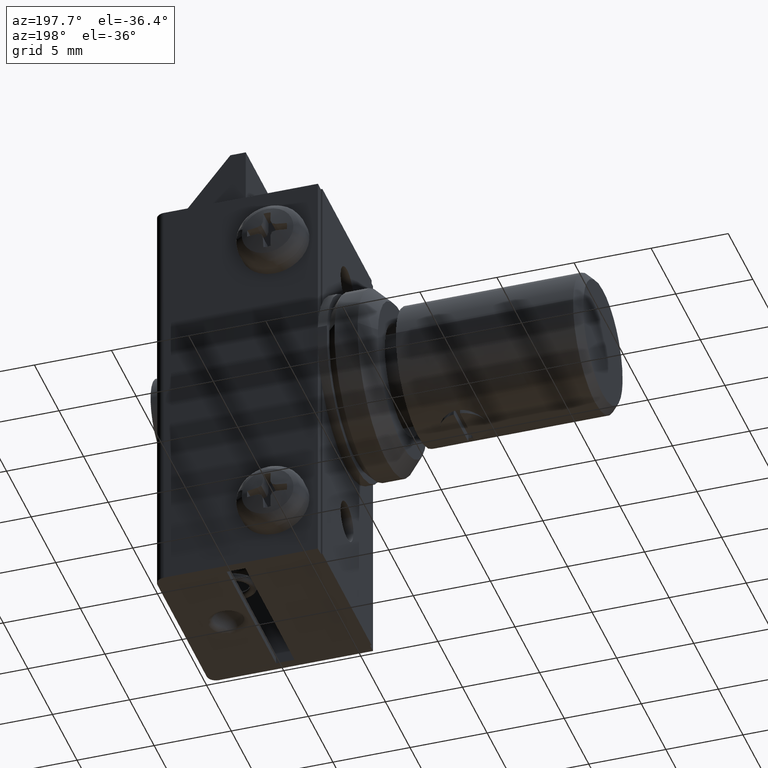
[diagram: clean part render]
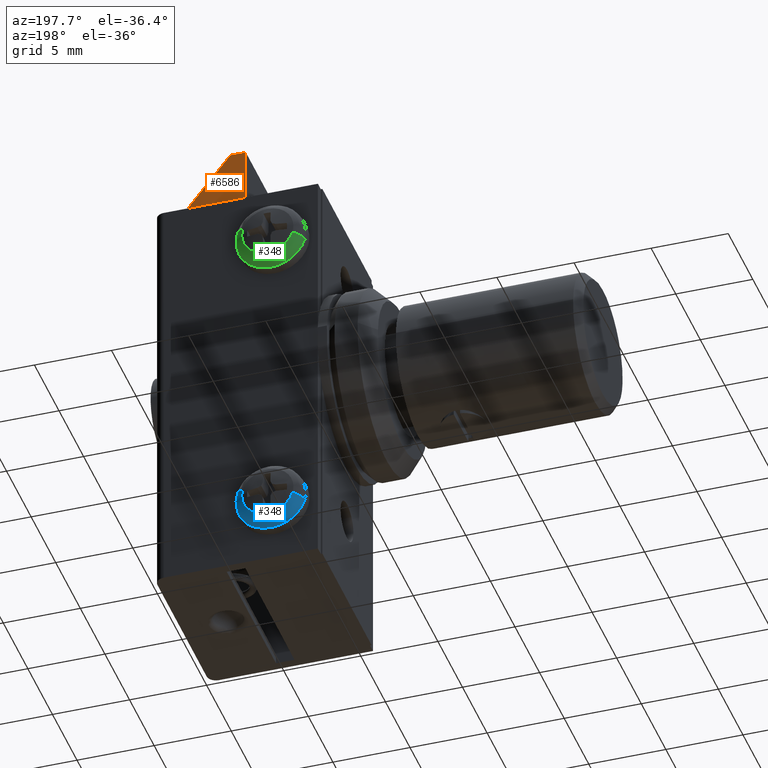
[diagram: same view with three faces highlighted in distinct colors, each labeled with its STEP entity id]
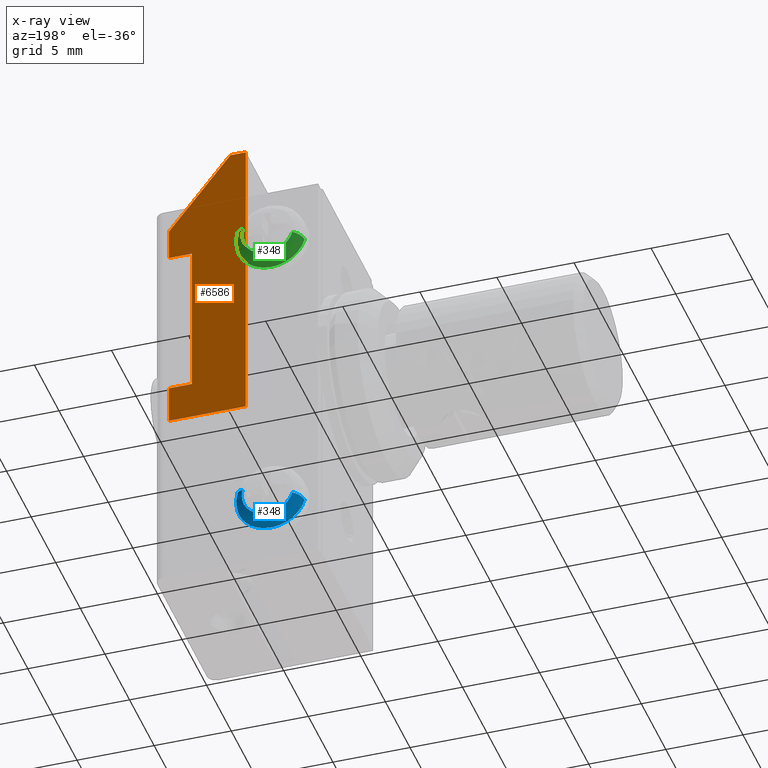
[diagram: x-ray of the same camera — body ghosted, the three highlighted faces saturated]
A machine part, auxiliary view with three faces highlighted in distinct colors.
The next image is the same camera in x-ray (body ghosted, the three faces saturated) — at least one of them is partly hidden behind the body in this view.
Their STEP definitions:

[orange] entity #6586 — the highlighted face is a freeform B-spline surface patch.
#6188=CARTESIAN_POINT('',(-0.500000000000000,4.900000000000000,15.0));
#6189=VERTEX_POINT('',#6188);
#6195=CARTESIAN_POINT('',(-2.0,4.900000000000000,15.0));
#6196=VERTEX_POINT('',#6195);
#6197=CARTESIAN_POINT('',(-0.500000000000000,4.900000000000000,15.0));
#6198=CARTESIAN_POINT('',(-2.0,4.900000000000000,15.0));
#6199=QUASI_UNIFORM_CURVE('',1,(#6197,#6198),.UNSPECIFIED.,.F.,.U.);
#6200=EDGE_CURVE('',#6189,#6196,#6199,.T.);
#6244=CARTESIAN_POINT('',(-2.0,4.900000000000000,25.0));
#6245=VERTEX_POINT('',#6244);
#6246=CARTESIAN_POINT('',(-2.0,4.900000000000000,25.0));
#6247=CARTESIAN_POINT('',(-2.0,4.900000000000000,15.0));
#6248=QUASI_UNIFORM_CURVE('',1,(#6246,#6247),.UNSPECIFIED.,.F.,.U.);
#6249=EDGE_CURVE('',#6245,#6196,#6248,.T.);
#6336=CARTESIAN_POINT('',(-0.500000000000000,4.900000000000000,25.0));
#6337=VERTEX_POINT('',#6336);
#6338=CARTESIAN_POINT('',(-0.500000000000000,4.900000000000000,25.0));
#6339=CARTESIAN_POINT('',(-2.0,4.900000000000000,25.0));
#6340=QUASI_UNIFORM_CURVE('',1,(#6338,#6339),.UNSPECIFIED.,.F.,.U.);
#6341=EDGE_CURVE('',#6337,#6245,#6340,.T.);
#6391=CARTESIAN_POINT('',(-0.500000000000000,4.900000000000000,27.000005312417699));
#6392=VERTEX_POINT('',#6391);
#6398=CARTESIAN_POINT('',(-4.500012000048830,4.900000000000000,32.0));
#6399=VERTEX_POINT('',#6398);
#6400=CARTESIAN_POINT('',(-4.500012000048830,4.900000000000000,32.0));
#6401=CARTESIAN_POINT('',(-0.500000000000000,4.900000000000000,27.000005312417699));
#6402=QUASI_UNIFORM_CURVE('',1,(#6400,#6401),.UNSPECIFIED.,.F.,.U.);
#6403=EDGE_CURVE('',#6399,#6392,#6402,.T.);
#6426=CARTESIAN_POINT('',(-5.500000000000000,4.900000000000000,32.0));
#6427=VERTEX_POINT('',#6426);
#6428=CARTESIAN_POINT('',(-5.500000000000000,4.900000000000000,32.0));
#6429=CARTESIAN_POINT('',(-4.500012000048830,4.900000000000000,32.0));
#6430=QUASI_UNIFORM_CURVE('',1,(#6428,#6429),.UNSPECIFIED.,.F.,.U.);
#6431=EDGE_CURVE('',#6427,#6399,#6430,.T.);
#6455=CARTESIAN_POINT('',(-5.500000000000000,4.900000000000000,12.500000000000000));
#6456=VERTEX_POINT('',#6455);
#6462=CARTESIAN_POINT('',(-0.500000000000000,4.900000000000000,12.500000000000000));
#6463=VERTEX_POINT('',#6462);
#6464=CARTESIAN_POINT('',(-0.500000000000000,4.900000000000000,12.500000000000000));
#6465=CARTESIAN_POINT('',(-5.500000000000000,4.900000000000000,12.500000000000000));
#6466=QUASI_UNIFORM_CURVE('',1,(#6464,#6465),.UNSPECIFIED.,.F.,.U.);
#6467=EDGE_CURVE('',#6463,#6456,#6466,.T.);
#6494=CARTESIAN_POINT('',(-0.500000000000000,4.900000000000000,27.000005312417699));
#6495=CARTESIAN_POINT('',(-0.500000000000000,4.900000000000000,25.0));
#6496=QUASI_UNIFORM_CURVE('',1,(#6494,#6495),.UNSPECIFIED.,.F.,.U.);
#6497=EDGE_CURVE('',#6392,#6337,#6496,.T.);
#6514=CARTESIAN_POINT('',(-5.500000000000000,4.900000000000000,12.500000000000000));
#6515=CARTESIAN_POINT('',(-5.500000000000000,4.900000000000000,32.0));
#6516=QUASI_UNIFORM_CURVE('',1,(#6514,#6515),.UNSPECIFIED.,.F.,.U.);
#6517=EDGE_CURVE('',#6456,#6427,#6516,.T.);
#6566=CARTESIAN_POINT('',(-5.749749990309030,4.900000000000000,32.974024962205220));
#6567=CARTESIAN_POINT('',(-0.250249875580520,4.900000000000000,32.974024962205220));
#6568=CARTESIAN_POINT('',(-5.749749990309030,4.900000000000000,11.525974514764030));
#6569=CARTESIAN_POINT('',(-0.250249875580520,4.900000000000000,11.525974514764030));
#6570=B_SPLINE_SURFACE_WITH_KNOTS('',1,1,((#6566,#6568),(#6567,#6569)),.UNSPECIFIED.,.F.,.F.,.U.,(2,2),(2,2),(0.0,5.499500114728510),(0.0,21.448050447441190),.UNSPECIFIED.);
#6571=ORIENTED_EDGE('',*,*,#6249,.T.);
#6572=ORIENTED_EDGE('',*,*,#6200,.F.);
#6573=CARTESIAN_POINT('',(-0.500000000000000,4.900000000000000,15.0));
#6574=CARTESIAN_POINT('',(-0.500000000000000,4.900000000000000,12.500000000000000));
#6575=QUASI_UNIFORM_CURVE('',1,(#6573,#6574),.UNSPECIFIED.,.F.,.U.);
#6576=EDGE_CURVE('',#6189,#6463,#6575,.T.);
#6577=ORIENTED_EDGE('',*,*,#6576,.T.);
#6578=ORIENTED_EDGE('',*,*,#6467,.T.);
#6579=ORIENTED_EDGE('',*,*,#6517,.T.);
#6580=ORIENTED_EDGE('',*,*,#6431,.T.);
#6581=ORIENTED_EDGE('',*,*,#6403,.T.);
#6582=ORIENTED_EDGE('',*,*,#6497,.T.);
#6583=ORIENTED_EDGE('',*,*,#6341,.T.);
#6584=EDGE_LOOP('',(#6571,#6572,#6577,#6578,#6579,#6580,#6581,#6582,#6583));
#6585=FACE_OUTER_BOUND('',#6584,.T.);
#6586=ADVANCED_FACE('',(#6585),#6570,.T.);

[blue] entity #348 — the highlighted face is a freeform B-spline surface patch.
#66=CARTESIAN_POINT('',(-6.240695038950468,-6.293762958131910,25.622066106918041));
#67=VERTEX_POINT('',#66);
#68=CARTESIAN_POINT('',(-5.635427625020865,-6.293762958249960,23.385858963917901));
#69=VERTEX_POINT('',#68);
#70=CARTESIAN_POINT('',(-6.240695038950468,-6.293762958131910,25.622066106918044));
#71=CARTESIAN_POINT('',(-5.549989999999760,-6.293762958112199,24.958090494951374));
#72=CARTESIAN_POINT('',(-5.549989999999760,-6.293762958112200,24.0));
#73=CARTESIAN_POINT('',(-5.549989999999760,-6.293762958112200,23.686986557324435));
#74=CARTESIAN_POINT('',(-5.635427625020865,-6.293762958249962,23.385858963917901));
#82=(BOUNDED_CURVE()B_SPLINE_CURVE(2,(#70,#71,#72,#73,#74),.UNSPECIFIED.,.F.,.U.)B_SPLINE_CURVE_WITH_KNOTS((3,2,3),(0.122022968753312,0.250000000000000,0.296505535788620),.UNSPECIFIED.)CURVE()GEOMETRIC_REPRESENTATION_ITEM()RATIONAL_B_SPLINE_CURVE((0.853636457125645,0.850065581535871,1.0,0.945515375720908,0.911301444596542))REPRESENTATION_ITEM(''));
#83=EDGE_CURVE('',#67,#69,#82,.T.);
#180=CARTESIAN_POINT('',(-7.799986999999869,-6.293762958112200,26.249997000000111));
#181=VERTEX_POINT('',#180);
#182=CARTESIAN_POINT('',(-7.799986999999869,-6.293762958112200,26.249997000000111));
#183=CARTESIAN_POINT('',(-6.893906425447376,-6.293762958112199,26.249997000000107));
#184=CARTESIAN_POINT('',(-6.240695038950468,-6.293762958131910,25.622066106918041));
#192=(BOUNDED_CURVE()B_SPLINE_CURVE(2,(#182,#183,#184),.UNSPECIFIED.,.F.,.U.)B_SPLINE_CURVE_WITH_KNOTS((3,3),(0.0,0.122022968753312),.UNSPECIFIED.)CURVE()GEOMETRIC_REPRESENTATION_ITEM()RATIONAL_B_SPLINE_CURVE((1.0,0.857041199650677,0.853636457125645))REPRESENTATION_ITEM(''));
#193=EDGE_CURVE('',#181,#67,#192,.T.);
#227=CARTESIAN_POINT('',(-9.964546374978873,-6.293762958249962,24.614141036082099));
#228=VERTEX_POINT('',#227);
#244=CARTESIAN_POINT('',(-9.964546374978873,-6.293762958249963,24.614141036082106));
#245=CARTESIAN_POINT('',(-9.500412062833400,-6.293762958112200,26.249997000000125));
#246=CARTESIAN_POINT('',(-7.799986999999869,-6.293762958112200,26.249997000000111));
#254=(BOUNDED_CURVE()B_SPLINE_CURVE(2,(#244,#245,#246),.UNSPECIFIED.,.F.,.U.)B_SPLINE_CURVE_WITH_KNOTS((3,3),(0.796505535788620,1.0),.UNSPECIFIED.)CURVE()GEOMETRIC_REPRESENTATION_ITEM()RATIONAL_B_SPLINE_CURVE((0.911301444596542,0.761591405465640,1.0))REPRESENTATION_ITEM(''));
#255=EDGE_CURVE('',#228,#181,#254,.T.);
#260=CARTESIAN_POINT('',(-9.365344813345688,-7.073903272484829,24.444132177846274));
#261=CARTESIAN_POINT('',(-8.921212635499414,-7.073903272484830,26.009489991192098));
#262=CARTESIAN_POINT('',(-7.355854822153595,-7.073903272484829,25.565357813345816));
#263=CARTESIAN_POINT('',(-5.790497008807777,-7.073903272484830,25.121225635499552));
#264=CARTESIAN_POINT('',(-6.234629186654049,-7.073903272484829,23.555867822153726));
#265=CARTESIAN_POINT('',(-10.001969907433411,-6.923638231132469,24.624759052480403));
#266=CARTESIAN_POINT('',(-9.377210854953006,-6.923638231132468,26.826741959913946));
#267=CARTESIAN_POINT('',(-7.175227947519468,-6.923638231132469,26.201982907433543));
#268=CARTESIAN_POINT('',(-4.973245040085927,-6.923638231132468,25.577223854953132));
#269=CARTESIAN_POINT('',(-5.598004092566331,-6.923638231132469,23.375240947519600));
#270=CARTESIAN_POINT('',(-9.963187098925156,-6.246237335243344,24.613755374561595));
#271=CARTESIAN_POINT('',(-9.349431724363575,-6.246237335243342,26.776955473486872));
#272=CARTESIAN_POINT('',(-7.186231625438289,-6.246237335243344,26.163200098925284));
#273=CARTESIAN_POINT('',(-5.023031526513002,-6.246237335243342,25.549444724363696));
#274=CARTESIAN_POINT('',(-5.636786901074585,-6.246237335243344,23.386244625438430));
#282=(BOUNDED_SURFACE()B_SPLINE_SURFACE(2,2,((#260,#265,#270),(#261,#266,#271),(#262,#267,#272),(#263,#268,#273),(#264,#269,#274)),.UNSPECIFIED.,.F.,.F.,.U.)B_SPLINE_SURFACE_WITH_KNOTS((3,2,3),(3,3),(0.0,3.725576074644100,7.451152149288200),(0.0,1.174398845798601),.UNSPECIFIED.)GEOMETRIC_REPRESENTATION_ITEM()RATIONAL_B_SPLINE_SURFACE(((0.917543070438592,0.698907896045894,0.915424195228748),(0.648800927137854,0.494202512718874,0.647302656108486),(0.917543070438592,0.698907896045894,0.915424195228748),(0.648800927137854,0.494202512718874,0.647302656108486),(0.917543070438592,0.698907896045894,0.915424195228748)))REPRESENTATION_ITEM('')SURFACE());
#283=CARTESIAN_POINT('',(-9.409532855611982,-7.062032371019841,24.456669459876309));
#284=VERTEX_POINT('',#283);
#285=CARTESIAN_POINT('',(-7.799986999999869,-7.062033736562820,25.673076858853719));
#286=VERTEX_POINT('',#285);
#287=CARTESIAN_POINT('',(-9.409532855611982,-7.062032371019841,24.456669459876309));
#288=CARTESIAN_POINT('',(-9.064407083830481,-7.062033053791332,25.673076805068089));
#289=CARTESIAN_POINT('',(-7.799986999999869,-7.062033736562820,25.673076858853719));
#297=(BOUNDED_CURVE()B_SPLINE_CURVE(2,(#287,#288,#289),.UNSPECIFIED.,.F.,.U.)B_SPLINE_CURVE_WITH_KNOTS((3,3),(0.796505535840531,1.0),.UNSPECIFIED.)CURVE()GEOMETRIC_REPRESENTATION_ITEM()RATIONAL_B_SPLINE_CURVE((0.911301444520160,0.761591405526458,1.0))REPRESENTATION_ITEM(''));
#298=EDGE_CURVE('',#284,#286,#297,.T.);
#299=ORIENTED_EDGE('',*,*,#298,.T.);
#300=CARTESIAN_POINT('',(-6.190441144387757,-7.062032371019841,23.543330540123691));
#301=VERTEX_POINT('',#300);
#302=CARTESIAN_POINT('',(-7.799986999999869,-7.062033736562820,25.673076858853719));
#303=CARTESIAN_POINT('',(-6.126910284412166,-7.062033220561354,25.673076899501964));
#304=CARTESIAN_POINT('',(-6.126910473981291,-7.062032537789865,24.000000094433869));
#305=CARTESIAN_POINT('',(-6.126910500353630,-7.062032442804558,23.767246214658382));
#306=CARTESIAN_POINT('',(-6.190441144387758,-7.062032371019841,23.543330540123694));
#314=(BOUNDED_CURVE()B_SPLINE_CURVE(2,(#302,#303,#304,#305,#306),.UNSPECIFIED.,.F.,.U.)B_SPLINE_CURVE_WITH_KNOTS((3,2,3),(0.0,0.250000000000000,0.296505535840531),.UNSPECIFIED.)CURVE()GEOMETRIC_REPRESENTATION_ITEM()RATIONAL_B_SPLINE_CURVE((1.0,0.707106781186547,1.0,0.945515375660090,0.911301444520160))REPRESENTATION_ITEM(''));
#315=EDGE_CURVE('',#286,#301,#314,.T.);
#316=ORIENTED_EDGE('',*,*,#315,.T.);
#317=CARTESIAN_POINT('',(-6.190441144387757,-7.062032371019841,23.543330540123691));
#318=CARTESIAN_POINT('',(-5.635427404398696,-6.894513335637758,23.385858901035235));
#319=CARTESIAN_POINT('',(-5.635427625020865,-6.293762958249960,23.385858963917901));
#327=(BOUNDED_CURVE()B_SPLINE_CURVE(2,(#317,#318,#319),.UNSPECIFIED.,.F.,.U.)B_SPLINE_CURVE_WITH_KNOTS((3,3),(-1.687478475823507,-0.319845355429088),.UNSPECIFIED.)CURVE()GEOMETRIC_REPRESENTATION_ITEM()RATIONAL_B_SPLINE_CURVE((0.898582511700671,0.717772118742888,0.896656306221798))REPRESENTATION_ITEM(''));
#328=EDGE_CURVE('',#301,#69,#327,.T.);
#329=ORIENTED_EDGE('',*,*,#328,.T.);
#330=ORIENTED_EDGE('',*,*,#83,.F.);
#331=ORIENTED_EDGE('',*,*,#193,.F.);
#332=ORIENTED_EDGE('',*,*,#255,.F.);
#333=CARTESIAN_POINT('',(-9.409532855611982,-7.062032371019841,24.456669459876302));
#334=CARTESIAN_POINT('',(-9.964546595601043,-6.894513335637758,24.614141098964765));
#335=CARTESIAN_POINT('',(-9.964546374978873,-6.293762958249962,24.614141036082106));
#343=(BOUNDED_CURVE()B_SPLINE_CURVE(2,(#333,#334,#335),.UNSPECIFIED.,.F.,.U.)B_SPLINE_CURVE_WITH_KNOTS((3,3),(-1.687478475823508,-0.319845355429089),.UNSPECIFIED.)CURVE()GEOMETRIC_REPRESENTATION_ITEM()RATIONAL_B_SPLINE_CURVE((0.898582511700671,0.717772118742888,0.896656306221798))REPRESENTATION_ITEM(''));
#344=EDGE_CURVE('',#284,#228,#343,.T.);
#345=ORIENTED_EDGE('',*,*,#344,.F.);
#346=EDGE_LOOP('',(#299,#316,#329,#330,#331,#332,#345));
#347=FACE_OUTER_BOUND('',#346,.T.);
#348=ADVANCED_FACE('',(#347),#282,.T.);

[green] entity #348 — the highlighted face is a freeform B-spline surface patch.
#66=CARTESIAN_POINT('',(-6.240695038950468,-6.293762958131910,25.622066106918041));
#67=VERTEX_POINT('',#66);
#68=CARTESIAN_POINT('',(-5.635427625020865,-6.293762958249960,23.385858963917901));
#69=VERTEX_POINT('',#68);
#70=CARTESIAN_POINT('',(-6.240695038950468,-6.293762958131910,25.622066106918044));
#71=CARTESIAN_POINT('',(-5.549989999999760,-6.293762958112199,24.958090494951374));
#72=CARTESIAN_POINT('',(-5.549989999999760,-6.293762958112200,24.0));
#73=CARTESIAN_POINT('',(-5.549989999999760,-6.293762958112200,23.686986557324435));
#74=CARTESIAN_POINT('',(-5.635427625020865,-6.293762958249962,23.385858963917901));
#82=(BOUNDED_CURVE()B_SPLINE_CURVE(2,(#70,#71,#72,#73,#74),.UNSPECIFIED.,.F.,.U.)B_SPLINE_CURVE_WITH_KNOTS((3,2,3),(0.122022968753312,0.250000000000000,0.296505535788620),.UNSPECIFIED.)CURVE()GEOMETRIC_REPRESENTATION_ITEM()RATIONAL_B_SPLINE_CURVE((0.853636457125645,0.850065581535871,1.0,0.945515375720908,0.911301444596542))REPRESENTATION_ITEM(''));
#83=EDGE_CURVE('',#67,#69,#82,.T.);
#180=CARTESIAN_POINT('',(-7.799986999999869,-6.293762958112200,26.249997000000111));
#181=VERTEX_POINT('',#180);
#182=CARTESIAN_POINT('',(-7.799986999999869,-6.293762958112200,26.249997000000111));
#183=CARTESIAN_POINT('',(-6.893906425447376,-6.293762958112199,26.249997000000107));
#184=CARTESIAN_POINT('',(-6.240695038950468,-6.293762958131910,25.622066106918041));
#192=(BOUNDED_CURVE()B_SPLINE_CURVE(2,(#182,#183,#184),.UNSPECIFIED.,.F.,.U.)B_SPLINE_CURVE_WITH_KNOTS((3,3),(0.0,0.122022968753312),.UNSPECIFIED.)CURVE()GEOMETRIC_REPRESENTATION_ITEM()RATIONAL_B_SPLINE_CURVE((1.0,0.857041199650677,0.853636457125645))REPRESENTATION_ITEM(''));
#193=EDGE_CURVE('',#181,#67,#192,.T.);
#227=CARTESIAN_POINT('',(-9.964546374978873,-6.293762958249962,24.614141036082099));
#228=VERTEX_POINT('',#227);
#244=CARTESIAN_POINT('',(-9.964546374978873,-6.293762958249963,24.614141036082106));
#245=CARTESIAN_POINT('',(-9.500412062833400,-6.293762958112200,26.249997000000125));
#246=CARTESIAN_POINT('',(-7.799986999999869,-6.293762958112200,26.249997000000111));
#254=(BOUNDED_CURVE()B_SPLINE_CURVE(2,(#244,#245,#246),.UNSPECIFIED.,.F.,.U.)B_SPLINE_CURVE_WITH_KNOTS((3,3),(0.796505535788620,1.0),.UNSPECIFIED.)CURVE()GEOMETRIC_REPRESENTATION_ITEM()RATIONAL_B_SPLINE_CURVE((0.911301444596542,0.761591405465640,1.0))REPRESENTATION_ITEM(''));
#255=EDGE_CURVE('',#228,#181,#254,.T.);
#260=CARTESIAN_POINT('',(-9.365344813345688,-7.073903272484829,24.444132177846274));
#261=CARTESIAN_POINT('',(-8.921212635499414,-7.073903272484830,26.009489991192098));
#262=CARTESIAN_POINT('',(-7.355854822153595,-7.073903272484829,25.565357813345816));
#263=CARTESIAN_POINT('',(-5.790497008807777,-7.073903272484830,25.121225635499552));
#264=CARTESIAN_POINT('',(-6.234629186654049,-7.073903272484829,23.555867822153726));
#265=CARTESIAN_POINT('',(-10.001969907433411,-6.923638231132469,24.624759052480403));
#266=CARTESIAN_POINT('',(-9.377210854953006,-6.923638231132468,26.826741959913946));
#267=CARTESIAN_POINT('',(-7.175227947519468,-6.923638231132469,26.201982907433543));
#268=CARTESIAN_POINT('',(-4.973245040085927,-6.923638231132468,25.577223854953132));
#269=CARTESIAN_POINT('',(-5.598004092566331,-6.923638231132469,23.375240947519600));
#270=CARTESIAN_POINT('',(-9.963187098925156,-6.246237335243344,24.613755374561595));
#271=CARTESIAN_POINT('',(-9.349431724363575,-6.246237335243342,26.776955473486872));
#272=CARTESIAN_POINT('',(-7.186231625438289,-6.246237335243344,26.163200098925284));
#273=CARTESIAN_POINT('',(-5.023031526513002,-6.246237335243342,25.549444724363696));
#274=CARTESIAN_POINT('',(-5.636786901074585,-6.246237335243344,23.386244625438430));
#282=(BOUNDED_SURFACE()B_SPLINE_SURFACE(2,2,((#260,#265,#270),(#261,#266,#271),(#262,#267,#272),(#263,#268,#273),(#264,#269,#274)),.UNSPECIFIED.,.F.,.F.,.U.)B_SPLINE_SURFACE_WITH_KNOTS((3,2,3),(3,3),(0.0,3.725576074644100,7.451152149288200),(0.0,1.174398845798601),.UNSPECIFIED.)GEOMETRIC_REPRESENTATION_ITEM()RATIONAL_B_SPLINE_SURFACE(((0.917543070438592,0.698907896045894,0.915424195228748),(0.648800927137854,0.494202512718874,0.647302656108486),(0.917543070438592,0.698907896045894,0.915424195228748),(0.648800927137854,0.494202512718874,0.647302656108486),(0.917543070438592,0.698907896045894,0.915424195228748)))REPRESENTATION_ITEM('')SURFACE());
#283=CARTESIAN_POINT('',(-9.409532855611982,-7.062032371019841,24.456669459876309));
#284=VERTEX_POINT('',#283);
#285=CARTESIAN_POINT('',(-7.799986999999869,-7.062033736562820,25.673076858853719));
#286=VERTEX_POINT('',#285);
#287=CARTESIAN_POINT('',(-9.409532855611982,-7.062032371019841,24.456669459876309));
#288=CARTESIAN_POINT('',(-9.064407083830481,-7.062033053791332,25.673076805068089));
#289=CARTESIAN_POINT('',(-7.799986999999869,-7.062033736562820,25.673076858853719));
#297=(BOUNDED_CURVE()B_SPLINE_CURVE(2,(#287,#288,#289),.UNSPECIFIED.,.F.,.U.)B_SPLINE_CURVE_WITH_KNOTS((3,3),(0.796505535840531,1.0),.UNSPECIFIED.)CURVE()GEOMETRIC_REPRESENTATION_ITEM()RATIONAL_B_SPLINE_CURVE((0.911301444520160,0.761591405526458,1.0))REPRESENTATION_ITEM(''));
#298=EDGE_CURVE('',#284,#286,#297,.T.);
#299=ORIENTED_EDGE('',*,*,#298,.T.);
#300=CARTESIAN_POINT('',(-6.190441144387757,-7.062032371019841,23.543330540123691));
#301=VERTEX_POINT('',#300);
#302=CARTESIAN_POINT('',(-7.799986999999869,-7.062033736562820,25.673076858853719));
#303=CARTESIAN_POINT('',(-6.126910284412166,-7.062033220561354,25.673076899501964));
#304=CARTESIAN_POINT('',(-6.126910473981291,-7.062032537789865,24.000000094433869));
#305=CARTESIAN_POINT('',(-6.126910500353630,-7.062032442804558,23.767246214658382));
#306=CARTESIAN_POINT('',(-6.190441144387758,-7.062032371019841,23.543330540123694));
#314=(BOUNDED_CURVE()B_SPLINE_CURVE(2,(#302,#303,#304,#305,#306),.UNSPECIFIED.,.F.,.U.)B_SPLINE_CURVE_WITH_KNOTS((3,2,3),(0.0,0.250000000000000,0.296505535840531),.UNSPECIFIED.)CURVE()GEOMETRIC_REPRESENTATION_ITEM()RATIONAL_B_SPLINE_CURVE((1.0,0.707106781186547,1.0,0.945515375660090,0.911301444520160))REPRESENTATION_ITEM(''));
#315=EDGE_CURVE('',#286,#301,#314,.T.);
#316=ORIENTED_EDGE('',*,*,#315,.T.);
#317=CARTESIAN_POINT('',(-6.190441144387757,-7.062032371019841,23.543330540123691));
#318=CARTESIAN_POINT('',(-5.635427404398696,-6.894513335637758,23.385858901035235));
#319=CARTESIAN_POINT('',(-5.635427625020865,-6.293762958249960,23.385858963917901));
#327=(BOUNDED_CURVE()B_SPLINE_CURVE(2,(#317,#318,#319),.UNSPECIFIED.,.F.,.U.)B_SPLINE_CURVE_WITH_KNOTS((3,3),(-1.687478475823507,-0.319845355429088),.UNSPECIFIED.)CURVE()GEOMETRIC_REPRESENTATION_ITEM()RATIONAL_B_SPLINE_CURVE((0.898582511700671,0.717772118742888,0.896656306221798))REPRESENTATION_ITEM(''));
#328=EDGE_CURVE('',#301,#69,#327,.T.);
#329=ORIENTED_EDGE('',*,*,#328,.T.);
#330=ORIENTED_EDGE('',*,*,#83,.F.);
#331=ORIENTED_EDGE('',*,*,#193,.F.);
#332=ORIENTED_EDGE('',*,*,#255,.F.);
#333=CARTESIAN_POINT('',(-9.409532855611982,-7.062032371019841,24.456669459876302));
#334=CARTESIAN_POINT('',(-9.964546595601043,-6.894513335637758,24.614141098964765));
#335=CARTESIAN_POINT('',(-9.964546374978873,-6.293762958249962,24.614141036082106));
#343=(BOUNDED_CURVE()B_SPLINE_CURVE(2,(#333,#334,#335),.UNSPECIFIED.,.F.,.U.)B_SPLINE_CURVE_WITH_KNOTS((3,3),(-1.687478475823508,-0.319845355429089),.UNSPECIFIED.)CURVE()GEOMETRIC_REPRESENTATION_ITEM()RATIONAL_B_SPLINE_CURVE((0.898582511700671,0.717772118742888,0.896656306221798))REPRESENTATION_ITEM(''));
#344=EDGE_CURVE('',#284,#228,#343,.T.);
#345=ORIENTED_EDGE('',*,*,#344,.F.);
#346=EDGE_LOOP('',(#299,#316,#329,#330,#331,#332,#345));
#347=FACE_OUTER_BOUND('',#346,.T.);
#348=ADVANCED_FACE('',(#347),#282,.T.);